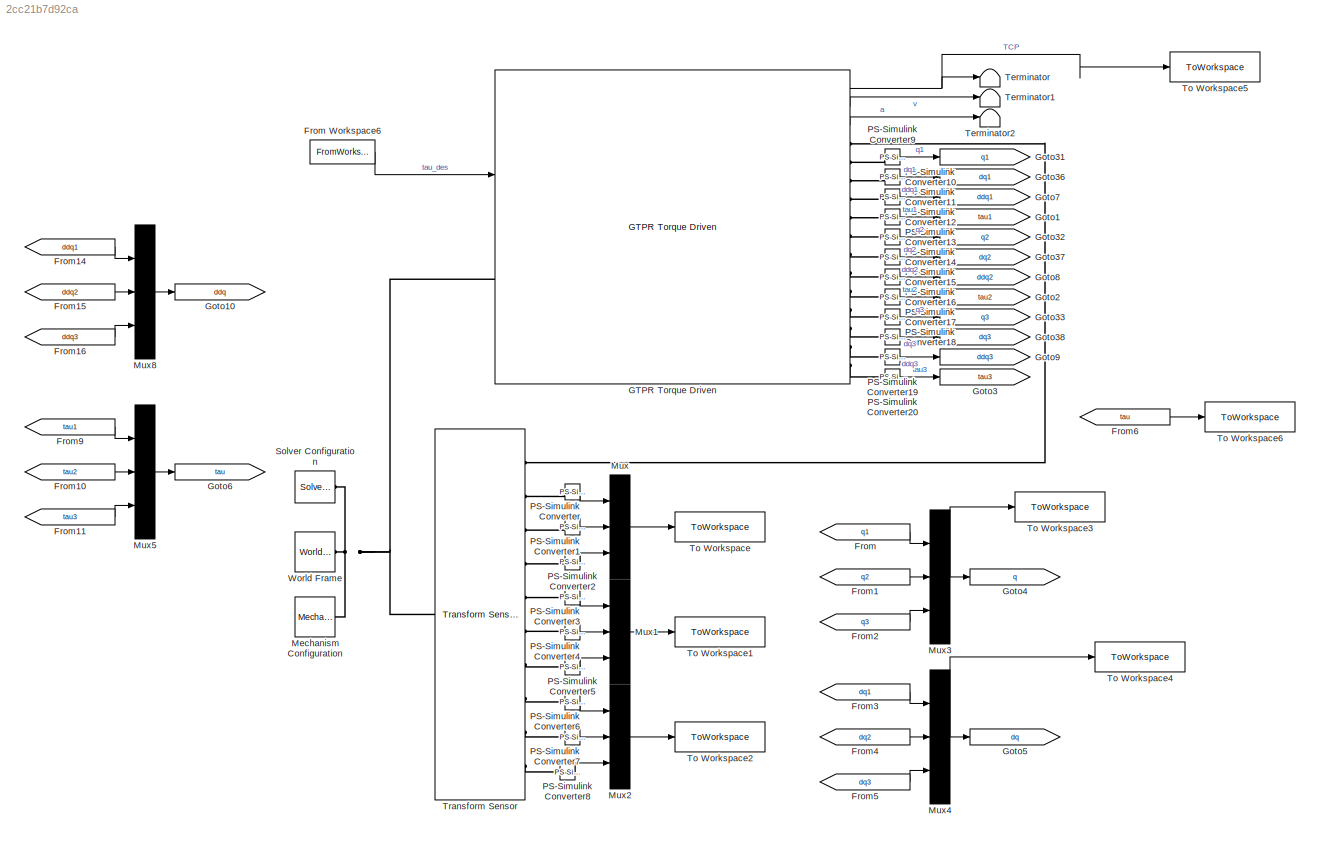
MODEL slx_2cc21b7d92ca
KIND model
CONFIG AbsTol = 1e-3
CONFIG EnableMultiTasking = off
CONFIG FixedStep = t_step
CONFIG MaxStep = auto
CONFIG MinStep = auto
CONFIG RelTol = 1e-3
CONFIG SampleTimeConstraint = Unconstrained
CONFIG SolverName = ode4
CONFIG StartTime = 0.0
CONFIG StopTime = t_end
WORKSPACE source: mxarray member
WORKSPACE dt_planner = 0.001
WORKSPACE dt_solver = 0.0002
BLOCK [From] From
  GotoTag = q1
BLOCK [FromWorkspace] From Workspace6
  OutDataTypeStr = double
  OutputAfterFinalValue = Holding final value
  SampleTime = t_step
  VariableName = tau_des
BLOCK [From] From1
  GotoTag = q2
BLOCK [From] From10
  GotoTag = tau2
BLOCK [From] From11
  GotoTag = tau3
BLOCK [From] From14
  GotoTag = ddq1
BLOCK [From] From15
  GotoTag = ddq2
BLOCK [From] From16
  GotoTag = ddq3
BLOCK [From] From2
  GotoTag = q3
BLOCK [From] From3
  GotoTag = dq1
BLOCK [From] From4
  GotoTag = dq2
BLOCK [From] From5
  GotoTag = dq3
BLOCK [From] From6
  GotoTag = tau
BLOCK [From] From9
  GotoTag = tau1
BLOCK [Reference] GTPR Torque Driven  REF=GTPR_Library/GTPR Torque Driven
  Ports = [1, 3, 0, 0, 0, 1, 13]
  SourceBlock = GTPR_Library/GTPR Torque Driven
  SourceProductName = Generalized Triangle Parallel Robot
  SourceType = Generalized Triangle Parallel Robot
BLOCK [Goto] Goto1
  GotoTag = tau1
BLOCK [Goto] Goto10
  Commented = on
  GotoTag = ddq
BLOCK [Goto] Goto2
  GotoTag = tau2
BLOCK [Goto] Goto3
  GotoTag = tau3
BLOCK [Goto] Goto31
  GotoTag = q1
BLOCK [Goto] Goto32
  GotoTag = q2
BLOCK [Goto] Goto33
  GotoTag = q3
BLOCK [Goto] Goto36
  GotoTag = dq1
BLOCK [Goto] Goto37
  GotoTag = dq2
BLOCK [Goto] Goto38
  GotoTag = dq3
BLOCK [Goto] Goto4
  Commented = on
  GotoTag = q
BLOCK [Goto] Goto5
  Commented = on
  GotoTag = dq
BLOCK [Goto] Goto6
  GotoTag = tau
BLOCK [Goto] Goto7
  GotoTag = ddq1
BLOCK [Goto] Goto8
  GotoTag = ddq2
BLOCK [Goto] Goto9
  GotoTag = ddq3
BLOCK [Reference] Mechanism Configuration  REF=sm_lib/Utilities/Mechanism
Configuration
  Ports = [0, 0, 0, 0, 0, 0, 1]
  SourceBlock = sm_lib/Utilities/Mechanism\nConfiguration
  SourceProductBaseCode = MS
  SourceType = Mechanism\nConfiguration
BLOCK [Mux] Mux
  DisplayOption = bar
  Inputs = 3
  Ports = [3, 1]
BLOCK [Mux] Mux1
  DisplayOption = bar
  Inputs = 3
  Ports = [3, 1]
BLOCK [Mux] Mux2
  DisplayOption = bar
  Inputs = 3
  Ports = [3, 1]
BLOCK [Mux] Mux3
  DisplayOption = bar
  Inputs = 3
  Ports = [3, 1]
BLOCK [Mux] Mux4
  DisplayOption = bar
  Inputs = 3
  Ports = [3, 1]
BLOCK [Mux] Mux5
  DisplayOption = bar
  Inputs = 3
  Ports = [3, 1]
BLOCK [Mux] Mux8
  DisplayOption = bar
  Inputs = 3
  Ports = [3, 1]
BLOCK [Reference] PS-Simulink Converter  REF=nesl_utility/PS-Simulink
Converter
  Ports = [0, 1, 0, 0, 0, 1]
  SourceBlock = nesl_utility/PS-Simulink\nConverter
  SourceProductBaseCode = PW,SS
  SourceType = PS-Simulink\nConverter
BLOCK [Reference] PS-Simulink Converter1  REF=nesl_utility/PS-Simulink
Converter
  Ports = [0, 1, 0, 0, 0, 1]
  SourceBlock = nesl_utility/PS-Simulink\nConverter
  SourceProductBaseCode = PW,SS
  SourceType = PS-Simulink\nConverter
BLOCK [Reference] PS-Simulink Converter10  REF=nesl_utility/PS-Simulink
Converter
  Ports = [0, 1, 0, 0, 0, 1]
  SourceBlock = nesl_utility/PS-Simulink\nConverter
  SourceProductBaseCode = PW,SS
  SourceType = PS-Simulink\nConverter
BLOCK [Reference] PS-Simulink Converter11  REF=nesl_utility/PS-Simulink
Converter
  Ports = [0, 1, 0, 0, 0, 1]
  SourceBlock = nesl_utility/PS-Simulink\nConverter
  SourceProductBaseCode = PW,SS
  SourceType = PS-Simulink\nConverter
BLOCK [Reference] PS-Simulink Converter12  REF=nesl_utility/PS-Simulink
Converter
  Ports = [0, 1, 0, 0, 0, 1]
  SourceBlock = nesl_utility/PS-Simulink\nConverter
  SourceProductBaseCode = PW,SS
  SourceType = PS-Simulink\nConverter
BLOCK [Reference] PS-Simulink Converter13  REF=nesl_utility/PS-Simulink
Converter
  Ports = [0, 1, 0, 0, 0, 1]
  SourceBlock = nesl_utility/PS-Simulink\nConverter
  SourceProductBaseCode = PW,SS
  SourceType = PS-Simulink\nConverter
BLOCK [Reference] PS-Simulink Converter14  REF=nesl_utility/PS-Simulink
Converter
  Ports = [0, 1, 0, 0, 0, 1]
  SourceBlock = nesl_utility/PS-Simulink\nConverter
  SourceProductBaseCode = PW,SS
  SourceType = PS-Simulink\nConverter
BLOCK [Reference] PS-Simulink Converter15  REF=nesl_utility/PS-Simulink
Converter
  Ports = [0, 1, 0, 0, 0, 1]
  SourceBlock = nesl_utility/PS-Simulink\nConverter
  SourceProductBaseCode = PW,SS
  SourceType = PS-Simulink\nConverter
BLOCK [Reference] PS-Simulink Converter16  REF=nesl_utility/PS-Simulink
Converter
  Ports = [0, 1, 0, 0, 0, 1]
  SourceBlock = nesl_utility/PS-Simulink\nConverter
  SourceProductBaseCode = PW,SS
  SourceType = PS-Simulink\nConverter
BLOCK [Reference] PS-Simulink Converter17  REF=nesl_utility/PS-Simulink
Converter
  Ports = [0, 1, 0, 0, 0, 1]
  SourceBlock = nesl_utility/PS-Simulink\nConverter
  SourceProductBaseCode = PW,SS
  SourceType = PS-Simulink\nConverter
BLOCK [Reference] PS-Simulink Converter18  REF=nesl_utility/PS-Simulink
Converter
  Ports = [0, 1, 0, 0, 0, 1]
  SourceBlock = nesl_utility/PS-Simulink\nConverter
  SourceProductBaseCode = PW,SS
  SourceType = PS-Simulink\nConverter
BLOCK [Reference] PS-Simulink Converter19  REF=nesl_utility/PS-Simulink
Converter
  Ports = [0, 1, 0, 0, 0, 1]
  SourceBlock = nesl_utility/PS-Simulink\nConverter
  SourceProductBaseCode = PW,SS
  SourceType = PS-Simulink\nConverter
BLOCK [Reference] PS-Simulink Converter2  REF=nesl_utility/PS-Simulink
Converter
  Ports = [0, 1, 0, 0, 0, 1]
  SourceBlock = nesl_utility/PS-Simulink\nConverter
  SourceProductBaseCode = PW,SS
  SourceType = PS-Simulink\nConverter
BLOCK [Reference] PS-Simulink Converter20  REF=nesl_utility/PS-Simulink
Converter
  Ports = [0, 1, 0, 0, 0, 1]
  SourceBlock = nesl_utility/PS-Simulink\nConverter
  SourceProductBaseCode = PW,SS
  SourceType = PS-Simulink\nConverter
BLOCK [Reference] PS-Simulink Converter3  REF=nesl_utility/PS-Simulink
Converter
  Ports = [0, 1, 0, 0, 0, 1]
  SourceBlock = nesl_utility/PS-Simulink\nConverter
  SourceProductBaseCode = PW,SS
  SourceType = PS-Simulink\nConverter
BLOCK [Reference] PS-Simulink Converter4  REF=nesl_utility/PS-Simulink
Converter
  Ports = [0, 1, 0, 0, 0, 1]
  SourceBlock = nesl_utility/PS-Simulink\nConverter
  SourceProductBaseCode = PW,SS
  SourceType = PS-Simulink\nConverter
BLOCK [Reference] PS-Simulink Converter5  REF=nesl_utility/PS-Simulink
Converter
  Ports = [0, 1, 0, 0, 0, 1]
  SourceBlock = nesl_utility/PS-Simulink\nConverter
  SourceProductBaseCode = PW,SS
  SourceType = PS-Simulink\nConverter
BLOCK [Reference] PS-Simulink Converter6  REF=nesl_utility/PS-Simulink
Converter
  Ports = [0, 1, 0, 0, 0, 1]
  SourceBlock = nesl_utility/PS-Simulink\nConverter
  SourceProductBaseCode = PW,SS
  SourceType = PS-Simulink\nConverter
BLOCK [Reference] PS-Simulink Converter7  REF=nesl_utility/PS-Simulink
Converter
  Ports = [0, 1, 0, 0, 0, 1]
  SourceBlock = nesl_utility/PS-Simulink\nConverter
  SourceProductBaseCode = PW,SS
  SourceType = PS-Simulink\nConverter
BLOCK [Reference] PS-Simulink Converter8  REF=nesl_utility/PS-Simulink
Converter
  Ports = [0, 1, 0, 0, 0, 1]
  SourceBlock = nesl_utility/PS-Simulink\nConverter
  SourceProductBaseCode = PW,SS
  SourceType = PS-Simulink\nConverter
BLOCK [Reference] PS-Simulink Converter9  REF=nesl_utility/PS-Simulink
Converter
  Ports = [0, 1, 0, 0, 0, 1]
  SourceBlock = nesl_utility/PS-Simulink\nConverter
  SourceProductBaseCode = PW,SS
  SourceType = PS-Simulink\nConverter
BLOCK [Reference] Solver Configuration  REF=nesl_utility/Solver
Configuration
  Ports = [0, 0, 0, 0, 0, 0, 1]
  SourceBlock = nesl_utility/Solver\nConfiguration
  SourceProductBaseCode = PW,SS
  SourceType = Solver\nConfiguration
BLOCK [Terminator] Terminator
BLOCK [Terminator] Terminator1
BLOCK [Terminator] Terminator2
BLOCK [ToWorkspace] To Workspace
  FixptAsFi = on
  MaxDataPoints = inf
  Ports = [1]
  SampleTime = t_step
  SaveFormat = Timeseries
  VariableName = TCP_Pos
BLOCK [ToWorkspace] To Workspace1
  FixptAsFi = on
  MaxDataPoints = inf
  Ports = [1]
  SampleTime = t_step
  SaveFormat = Timeseries
  VariableName = TCP_Vel
BLOCK [ToWorkspace] To Workspace2
  FixptAsFi = on
  MaxDataPoints = inf
  Ports = [1]
  SampleTime = t_step
  SaveFormat = Timeseries
  VariableName = TCP_Accel
BLOCK [ToWorkspace] To Workspace3
  FixptAsFi = on
  MaxDataPoints = inf
  Ports = [1]
  SampleTime = t_step
  SaveFormat = Timeseries
  VariableName = sm_q
BLOCK [ToWorkspace] To Workspace4
  FixptAsFi = on
  MaxDataPoints = inf
  Ports = [1]
  SampleTime = t_step
  SaveFormat = Timeseries
  VariableName = sm_dq
BLOCK [ToWorkspace] To Workspace5
  Commented = on
  FixptAsFi = on
  MaxDataPoints = inf
  Ports = [1]
  SampleTime = -1
  SaveFormat = Timeseries
  VariableName = TCP_Pos
BLOCK [ToWorkspace] To Workspace6
  FixptAsFi = on
  MaxDataPoints = inf
  Ports = [1]
  SampleTime = t_step
  SaveFormat = Timeseries
  VariableName = sm_tau
BLOCK [Reference] Transform Sensor  REF=sm_lib/Frames and
Transforms/Transform
Sensor
  Ports = [0, 0, 0, 0, 0, 1, 10]
  SourceBlock = sm_lib/Frames and\nTransforms/Transform\nSensor
  SourceProductBaseCode = MS
  SourceType = Transform\nSensor
BLOCK [Reference] World Frame  REF=sm_lib/Frames and
Transforms/World Frame
  Ports = [0, 0, 0, 0, 0, 0, 1]
  SourceBlock = sm_lib/Frames and\nTransforms/World Frame
  SourceProductBaseCode = MS
  SourceType = World Frame
LINE From Workspace6:1 -> GTPR Torque Driven:1
LINE From10:1 -> Mux5:2
LINE From11:1 -> Mux5:3
LINE From14:1 -> Mux8:1
LINE From15:1 -> Mux8:2
LINE From16:1 -> Mux8:3
LINE From1:1 -> Mux3:2
LINE From2:1 -> Mux3:3
LINE From3:1 -> Mux4:1
LINE From4:1 -> Mux4:2
LINE From5:1 -> Mux4:3
LINE From6:1 -> To Workspace6:1
LINE From9:1 -> Mux5:1
LINE From:1 -> Mux3:1
NET GTPR Torque Driven:1 -> Terminator:1, To Workspace5:1
LINE GTPR Torque Driven:2 -> Terminator1:1
LINE GTPR Torque Driven:3 -> Terminator2:1
LINE Mux1:1 -> To Workspace1:1
LINE Mux2:1 -> To Workspace2:1
NET Mux3:1 -> Goto4:1, To Workspace3:1
NET Mux4:1 -> Goto5:1, To Workspace4:1
LINE Mux5:1 -> Goto6:1
LINE Mux8:1 -> Goto10:1
LINE Mux:1 -> To Workspace:1
LINE PS-Simulink Converter10:1 -> Goto36:1
LINE PS-Simulink Converter11:1 -> Goto7:1
LINE PS-Simulink Converter12:1 -> Goto1:1
LINE PS-Simulink Converter13:1 -> Goto32:1
LINE PS-Simulink Converter14:1 -> Goto37:1
LINE PS-Simulink Converter15:1 -> Goto8:1
LINE PS-Simulink Converter16:1 -> Goto2:1
LINE PS-Simulink Converter17:1 -> Goto33:1
LINE PS-Simulink Converter18:1 -> Goto38:1
LINE PS-Simulink Converter19:1 -> Goto9:1
LINE PS-Simulink Converter1:1 -> Mux:2
LINE PS-Simulink Converter20:1 -> Goto3:1
LINE PS-Simulink Converter2:1 -> Mux:3
LINE PS-Simulink Converter3:1 -> Mux1:1
LINE PS-Simulink Converter4:1 -> Mux1:2
LINE PS-Simulink Converter5:1 -> Mux1:3
LINE PS-Simulink Converter6:1 -> Mux2:1
LINE PS-Simulink Converter7:1 -> Mux2:2
LINE PS-Simulink Converter8:1 -> Mux2:3
LINE PS-Simulink Converter9:1 -> Goto31:1
LINE PS-Simulink Converter:1 -> Mux:1
PNET net1: GTPR Torque Driven:LConn1 -- Mechanism Configuration:RConn1 -- Solver Configuration:RConn1 -- Transform Sensor:LConn1 -- World Frame:RConn1
PLINE GTPR Torque Driven:RConn1 -- Transform Sensor:RConn1
PLINE GTPR Torque Driven:RConn10 -- PS-Simulink Converter17:LConn1
PLINE GTPR Torque Driven:RConn11 -- PS-Simulink Converter18:LConn1
PLINE GTPR Torque Driven:RConn12 -- PS-Simulink Converter19:LConn1
PLINE GTPR Torque Driven:RConn13 -- PS-Simulink Converter20:LConn1
PLINE GTPR Torque Driven:RConn2 -- PS-Simulink Converter9:LConn1
PLINE GTPR Torque Driven:RConn3 -- PS-Simulink Converter10:LConn1
PLINE GTPR Torque Driven:RConn4 -- PS-Simulink Converter11:LConn1
PLINE GTPR Torque Driven:RConn5 -- PS-Simulink Converter12:LConn1
PLINE GTPR Torque Driven:RConn6 -- PS-Simulink Converter13:LConn1
PLINE GTPR Torque Driven:RConn7 -- PS-Simulink Converter14:LConn1
PLINE GTPR Torque Driven:RConn8 -- PS-Simulink Converter15:LConn1
PLINE GTPR Torque Driven:RConn9 -- PS-Simulink Converter16:LConn1
PLINE PS-Simulink Converter1:LConn1 -- Transform Sensor:RConn3
PLINE PS-Simulink Converter2:LConn1 -- Transform Sensor:RConn4
PLINE PS-Simulink Converter3:LConn1 -- Transform Sensor:RConn5
PLINE PS-Simulink Converter4:LConn1 -- Transform Sensor:RConn6
PLINE PS-Simulink Converter5:LConn1 -- Transform Sensor:RConn7
PLINE PS-Simulink Converter6:LConn1 -- Transform Sensor:RConn8
PLINE PS-Simulink Converter7:LConn1 -- Transform Sensor:RConn9
PLINE PS-Simulink Converter8:LConn1 -- Transform Sensor:RConn10
PLINE PS-Simulink Converter:LConn1 -- Transform Sensor:RConn2
note: NET lines group one-source signal fan-out (src -> all destinations, sorted); 1:1 wires keep LINE; PNET lines group multi-terminal physical nets as a canonical sorted terminal list (undirected conserving connections); 2-terminal nets keep the pairwise PLINE form
